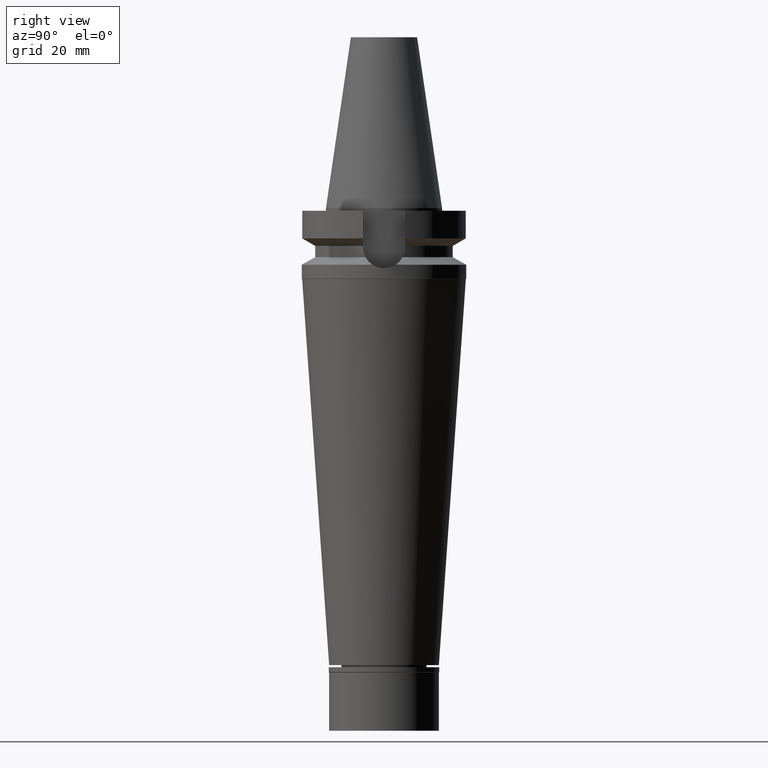
[diagram: clean part render]
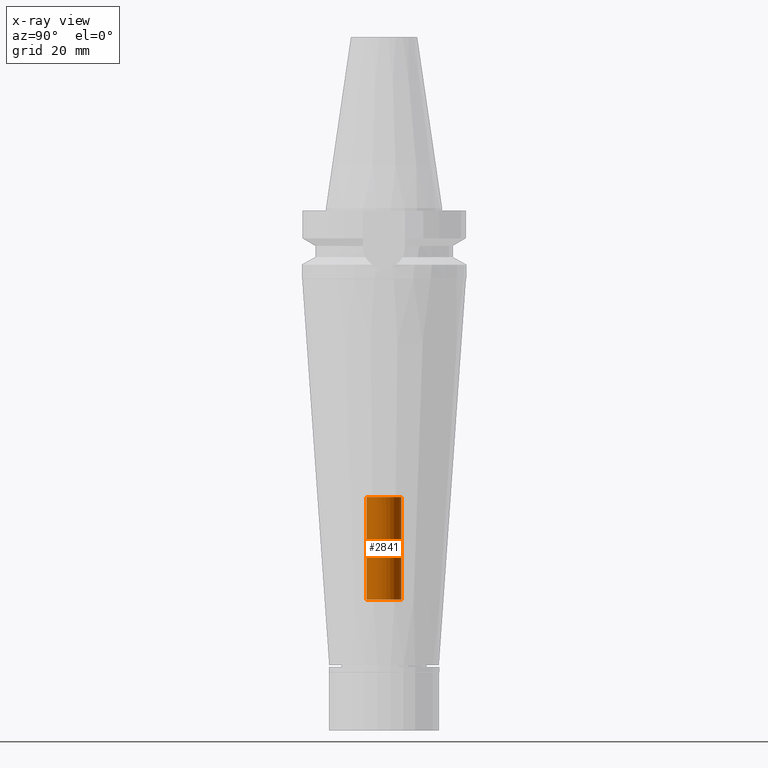
[diagram: x-ray — body ghosted, one internal face saturated and labeled with its STEP entity id]
A machine part, right view, then the same camera in x-ray: the body is ghosted and one INTERNAL B-rep face — a face not visible from any outside direction — is saturated and labeled: STEP entity #2841.
In plain terms, the highlighted cylindrical surface (edge-blend (fillet) strip) has radius 6.65 mm, axis along (0, 0, -1).
Its self-contained STEP definition (entity closure, byte-faithful):
#83 = CARTESIAN_POINT ( 'NONE',  ( 0.0000000000000000000, 6.649999999999999467, -149.7999999999999829 ) ) ;
#103 = DIRECTION ( 'NONE',  ( 0.0000000000000000000, 1.000000000000000000, 0.0000000000000000000 ) ) ;
#232 = EDGE_CURVE ( 'NONE', #2425, #1096, #2745, .T. ) ;
#333 = CARTESIAN_POINT ( 'NONE',  ( 0.0000000000000000000, 2.183484010539999864E-14, -110.6000000000000085 ) ) ;
#403 = FACE_OUTER_BOUND ( 'NONE', #952, .T. ) ;
#464 = ORIENTED_EDGE ( 'NONE', *, *, #1399, .F. ) ;
#479 = DIRECTION ( 'NONE',  ( 0.0000000000000000000, 0.0000000000000000000, 1.000000000000000000 ) ) ;
#577 = CARTESIAN_POINT ( 'NONE',  ( 0.0000000000000000000, -6.649999999999999467, -110.6000000000000085 ) ) ;
#593 = DIRECTION ( 'NONE',  ( 0.0000000000000000000, 0.0000000000000000000, 1.000000000000000000 ) ) ;
#677 = DIRECTION ( 'NONE',  ( 0.0000000000000000000, -1.000000000000000000, 0.0000000000000000000 ) ) ;
#877 = VERTEX_POINT ( 'NONE', #1307 ) ;
#884 = DIRECTION ( 'NONE',  ( 0.0000000000000000000, 0.0000000000000000000, -1.000000000000000000 ) ) ;
#952 = EDGE_LOOP ( 'NONE', ( #2067, #1274, #1108, #464 ) ) ;
#979 = EDGE_CURVE ( 'NONE', #2723, #877, #1343, .T. ) ;
#1005 = AXIS2_PLACEMENT_3D ( 'NONE', #2806, #884, #677 ) ;
#1022 = CARTESIAN_POINT ( 'NONE',  ( 0.0000000000000000000, -6.649999999999999467, -149.7999999999999829 ) ) ;
#1096 = VERTEX_POINT ( 'NONE', #1022 ) ;
#1108 = ORIENTED_EDGE ( 'NONE', *, *, #979, .T. ) ;
#1184 = AXIS2_PLACEMENT_3D ( 'NONE', #333, #2250, #2269 ) ;
#1274 = ORIENTED_EDGE ( 'NONE', *, *, #2582, .T. ) ;
#1307 = CARTESIAN_POINT ( 'NONE',  ( 0.0000000000000000000, 6.649999999999999467, -110.6000000000000085 ) ) ;
#1343 = CIRCLE ( 'NONE', #1184, 6.649999999999999467 ) ;
#1348 = DIRECTION ( 'NONE',  ( 0.0000000000000000000, 0.0000000000000000000, -1.000000000000000000 ) ) ;
#1380 = AXIS2_PLACEMENT_3D ( 'NONE', #2781, #1348, #103 ) ;
#1399 = EDGE_CURVE ( 'NONE', #2425, #877, #3009, .T. ) ;
#1675 = LINE ( 'NONE', #2651, #2809 ) ;
#1787 = VECTOR ( 'NONE', #593, 1000.000000000000000 ) ;
#2067 = ORIENTED_EDGE ( 'NONE', *, *, #232, .T. ) ;
#2113 = CYLINDRICAL_SURFACE ( 'NONE', #1005, 6.649999999999999467 ) ;
#2250 = DIRECTION ( 'NONE',  ( 0.0000000000000000000, 0.0000000000000000000, 1.000000000000000000 ) ) ;
#2269 = DIRECTION ( 'NONE',  ( 0.0000000000000000000, -1.000000000000000000, 0.0000000000000000000 ) ) ;
#2418 = CARTESIAN_POINT ( 'NONE',  ( 0.0000000000000000000, 6.649999999999999467, -149.7999999999999829 ) ) ;
#2425 = VERTEX_POINT ( 'NONE', #2418 ) ;
#2582 = EDGE_CURVE ( 'NONE', #1096, #2723, #1675, .T. ) ;
#2651 = CARTESIAN_POINT ( 'NONE',  ( 0.0000000000000000000, -6.649999999999999467, -149.7999999999999829 ) ) ;
#2723 = VERTEX_POINT ( 'NONE', #577 ) ;
#2745 = CIRCLE ( 'NONE', #1380, 6.649999999999999467 ) ;
#2781 = CARTESIAN_POINT ( 'NONE',  ( 0.0000000000000000000, 2.183484010539999864E-14, -149.7999999999999829 ) ) ;
#2806 = CARTESIAN_POINT ( 'NONE',  ( 0.0000000000000000000, 2.183484010539999864E-14, 78.29500000000000171 ) ) ;
#2809 = VECTOR ( 'NONE', #479, 1000.000000000000000 ) ;
#2841 = ADVANCED_FACE ( 'NONE', ( #403 ), #2113, .F. ) ;
#3009 = LINE ( 'NONE', #83, #1787 ) ;